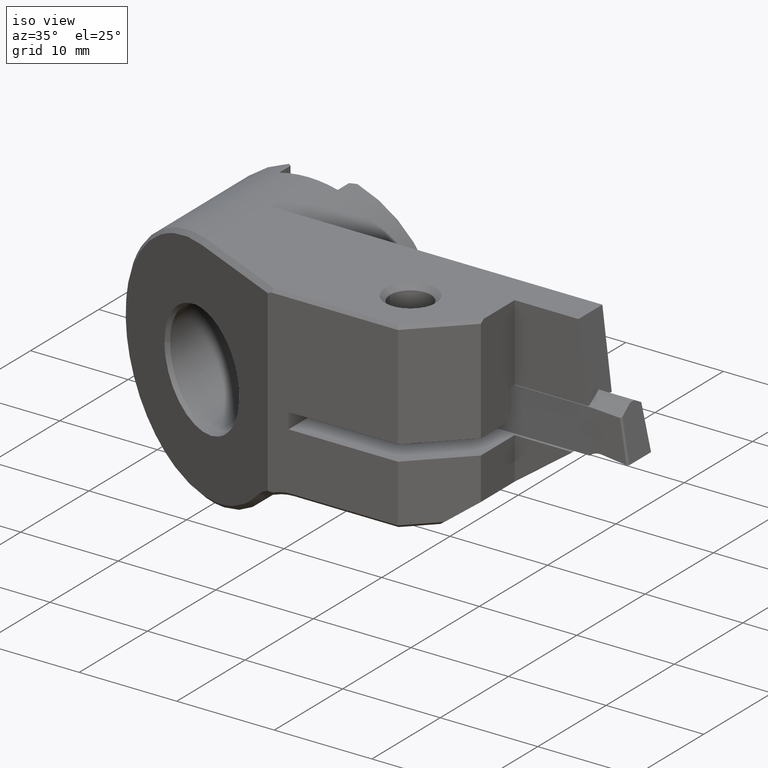
[diagram: clean part render]
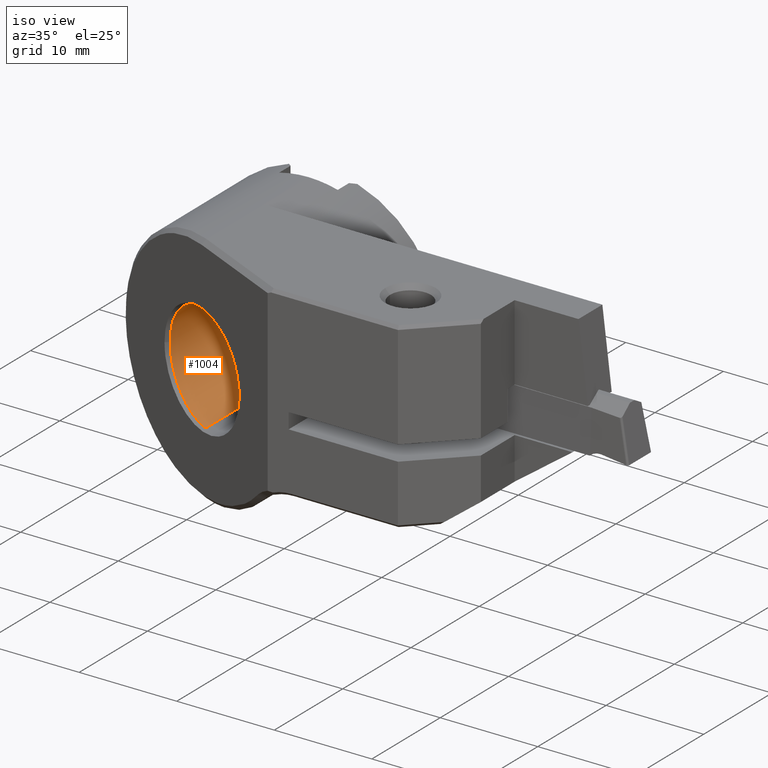
[diagram: same view with one face highlighted and labeled with its STEP entity id]
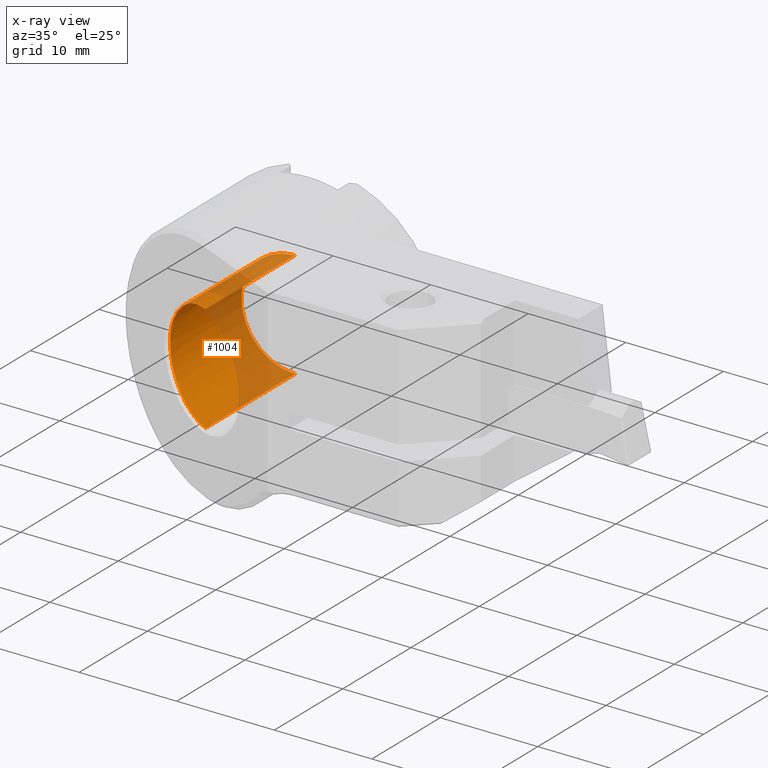
[diagram: x-ray of the same camera — body ghosted, the highlighted face saturated]
A machine part, iso view. The second image highlights one B-rep face of the part: STEP entity #1004.
The next image is the same camera in x-ray: the body ghosted, the highlighted face saturated — about 43% of this face is hidden behind the body in this view.
In plain terms, the highlighted cylindrical surface (partial cylindrical patch) has radius 5.5 mm, axis along (-0, 1, -0).
Its self-contained STEP definition (entity closure, byte-faithful):
#1004=ADVANCED_FACE('NONE',(#2567),#2568,.F.);
#1056=VERTEX_POINT('NONE',#2628);
#1256=EDGE_CURVE('NONE',#2230,#1868,#2846,.T.);
#1526=EDGE_CURVE('NONE',#1582,#1708,#3146,.T.);
#1582=VERTEX_POINT('NONE',#3206);
#1594=EDGE_CURVE('NONE',#1708,#2230,#3220,.T.);
#1708=VERTEX_POINT('NONE',#3339);
#1868=VERTEX_POINT('NONE',#3514);
#1886=EDGE_CURVE('NONE',#1056,#1868,#3535,.T.);
#2230=VERTEX_POINT('NONE',#3917);
#2326=EDGE_CURVE('NONE',#1056,#1582,#4025,.T.);
#2567=FACE_OUTER_BOUND('',#4493,.T.);
#2568=CYLINDRICAL_SURFACE('',#4494,5.5);
#2628=CARTESIAN_POINT('',(0.0,-17.1929959776406,5.5));
#2846=CIRCLE('',#5009,5.5);
#3146=B_SPLINE_CURVE_WITH_KNOTS('',3,(#5462,#5463,#5464,#5465,#5466,#5467,#5468,#5469,#5470,#5471,#5472,#5473,#5474,#5475,#5476,#5477,#5478,#5479,#5480,#5481,#5482,#5483,#5484,#5485,#5486,#5487,#5488,#5489,#5490,#5491,#5492,#5493,#5494),.UNSPECIFIED.,.F.,.F.,(4,2,2,2,1,1,1,2,2,2,2,2,1,1,1,1,2,2,2,4),(0.0,0.0625000000000113,0.093750000000017,0.10937500000002,0.117187500000021,0.121093750000022,0.123046875000022,0.124023437500022,0.125000000000023,0.156250000000027,0.171875000000029,0.17968750000003,0.183593750000031,0.185546875000031,0.186523437500031,0.187011718750031,0.187255859375031,0.187500000000031,0.218750000000015,0.25),.UNSPECIFIED.);
#3206=CARTESIAN_POINT('',(-5.5,-14.5434428039987,-1.04726789089104E-015));
#3220=LINE('',#5598,#5599);
#3339=CARTESIAN_POINT('',(-6.68798484620256E-015,-17.1929959776406,-5.5));
#3514=CARTESIAN_POINT('',(0.0,-4.1,5.5));
#3535=LINE('',#6177,#6178);
#3917=CARTESIAN_POINT('',(6.73555739531044E-016,-4.1,-5.5));
#4025=B_SPLINE_CURVE_WITH_KNOTS('',3,(#7124,#7125,#7126,#7127,#7128,#7129,#7130,#7131,#7132,#7133,#7134,#7135,#7136,#7137,#7138,#7139,#7140,#7141,#7142,#7143,#7144,#7145,#7146,#7147,#7148,#7149,#7150,#7151,#7152,#7153,#7154),.UNSPECIFIED.,.F.,.F.,(4,2,2,2,1,1,1,1,2,2,2,2,1,1,1,2,2,2,4),(0.75,0.78124999999999,0.796874999999986,0.804687499999983,0.808593749999982,0.810546874999982,0.811523437499981,0.812011718749981,0.812255859374981,0.812499999999981,0.843749999999984,0.859374999999986,0.867187499999987,0.871093749999987,0.873046874999988,0.874023437499988,0.874999999999988,0.937499999999994,1.0),.UNSPECIFIED.);
#4493=EDGE_LOOP('',(#7370,#7371,#7372,#7373,#7374));
#4494=AXIS2_PLACEMENT_3D('',#7375,#7376,#7377);
#5009=AXIS2_PLACEMENT_3D('',#7694,#7695,#7696);
#5462=CARTESIAN_POINT('',(-5.5,-14.5434428039987,-1.04726789089104E-015));
#5463=CARTESIAN_POINT('',(-5.5,-14.5434958014038,-0.680599313190137));
#5464=CARTESIAN_POINT('',(-5.37199024192015,-14.6081919798934,-1.3820442898368));
#5465=CARTESIAN_POINT('',(-4.96945245399989,-14.8022010192547,-2.3841400340633));
#5466=CARTESIAN_POINT('',(-4.80050298023184,-14.883031494313,-2.70959989943903));
#5467=CARTESIAN_POINT('',(-4.49604089303775,-15.0285183998071,-3.1732958273215));
#5468=CARTESIAN_POINT('',(-4.38607416683032,-15.0810542337896,-3.32377181117215));
#5469=CARTESIAN_POINT('',(-4.2088014777841,-15.16591828299,-3.54185919158598));
#5470=CARTESIAN_POINT('',(-4.11708727211427,-15.2098653821469,-3.64899604034688));
#5471=CARTESIAN_POINT('',(-4.00481791053764,-15.2637883783041,-3.77032508438988));
#5472=CARTESIAN_POINT('',(-3.94738276148708,-15.2914127215013,-3.83003285562333));
#5473=CARTESIAN_POINT('',(-3.92249089246139,-15.3033937639683,-3.85541252341264));
#5474=CARTESIAN_POINT('',(-3.90583501453301,-15.3114126896662,-3.8722852899002));
#5475=CARTESIAN_POINT('',(-3.89616190515332,-15.3160711365899,-3.8820126878987));
#5476=CARTESIAN_POINT('',(-3.6626998204518,-15.4285293567768,-4.11547477260022));
#5477=CARTESIAN_POINT('',(-3.40222962704263,-15.5547599596693,-4.33640577516736));
#5478=CARTESIAN_POINT('',(-2.9565518634169,-15.7698761753476,-4.64124944917141));
#5479=CARTESIAN_POINT('',(-2.79887510435076,-15.8458766324637,-4.73839377856783));
#5480=CARTESIAN_POINT('',(-2.54870812309004,-15.9663198959726,-4.8747416614551));
#5481=CARTESIAN_POINT('',(-2.46304790043753,-16.0075414134481,-4.91862717014128));
#5482=CARTESIAN_POINT('',(-2.33119387280764,-16.07098433412,-4.98175768951678));
#5483=CARTESIAN_POINT('',(-2.26442638080868,-16.1031084555707,-5.01264833018092));
#5484=CARTESIAN_POINT('',(-2.1850744656184,-16.1412912542138,-5.04742801755988));
#5485=CARTESIAN_POINT('',(-2.14503655343112,-16.160558817773,-5.06449304047735));
#5486=CARTESIAN_POINT('',(-2.12492739161609,-16.1702366406121,-5.07294309747912));
#5487=CARTESIAN_POINT('',(-2.11628988105863,-16.1743937163415,-5.07654674748955));
#5488=CARTESIAN_POINT('',(-2.11052725572543,-16.1771671973545,-5.07894520968261));
#5489=CARTESIAN_POINT('',(-2.10653795879818,-16.1790872282674,-5.08060050969644));
#5490=CARTESIAN_POINT('',(-1.87694968535023,-16.2895880980755,-5.17569905068115));
#5491=CARTESIAN_POINT('',(-1.58999916768133,-16.4288312478248,-5.27745051648229));
#5492=CARTESIAN_POINT('',(-0.888565367313591,-16.7665152989859,-5.4396721312187));
#5493=CARTESIAN_POINT('',(-0.473184578301002,-16.9650454875539,-5.5));
#5494=CARTESIAN_POINT('',(-6.68798484620256E-015,-17.1929959776406,-5.5));
#5598=CARTESIAN_POINT('',(6.73555739531044E-016,0.0,-5.5));
#5599=VECTOR('',#8082,1000.0);
#6177=CARTESIAN_POINT('',(0.0,0.0,5.5));
#6178=VECTOR('',#8366,1000.0);
#7124=CARTESIAN_POINT('',(0.0,-17.1929959776406,5.5));
#7125=CARTESIAN_POINT('',(-0.473184550394734,-16.9650454999648,5.5));
#7126=CARTESIAN_POINT('',(-0.888290357929265,-16.7666492483367,5.43971704660788));
#7127=CARTESIAN_POINT('',(-1.41437185849386,-16.5133862099659,5.31807743199431));
#7128=CARTESIAN_POINT('',(-1.57390947451253,-16.4363537536875,5.27217385147742));
#7129=CARTESIAN_POINT('',(-1.79005116924163,-16.3318879040378,5.20110265713313));
#7130=CARTESIAN_POINT('',(-1.85824598273591,-16.2989130932826,5.1770310704475));
#7131=CARTESIAN_POINT('',(-1.95488782192633,-16.2522215858416,5.14097226338242));
#7132=CARTESIAN_POINT('',(-2.00179659356622,-16.2295685092942,5.12295388773215));
#7133=CARTESIAN_POINT('',(-2.05408412442847,-16.2043521050415,5.10207576065467));
#7134=CARTESIAN_POINT('',(-2.07962224314284,-16.1920469491784,5.09168716391824));
#7135=CARTESIAN_POINT('',(-2.0922404176263,-16.1859701328126,5.08650728870881));
#7136=CARTESIAN_POINT('',(-2.09761593115466,-16.1833820175628,5.08429062393399));
#7137=CARTESIAN_POINT('',(-2.10119244085036,-16.1816602150899,5.08281359777931));
#7138=CARTESIAN_POINT('',(-2.1018746045232,-16.1813317882789,5.08253213355939));
#7139=CARTESIAN_POINT('',(-2.47385903254822,-16.0022844166001,4.92845119622341));
#7140=CARTESIAN_POINT('',(-2.80763496506254,-15.8417493075954,4.7430757304717));
#7141=CARTESIAN_POINT('',(-3.25333571416933,-15.626633091917,4.43826566368195));
#7142=CARTESIAN_POINT('',(-3.39281755064569,-15.5592087613291,4.33217312834028));
#7143=CARTESIAN_POINT('',(-3.58873886353115,-15.4644938774043,4.16871528241638));
#7144=CARTESIAN_POINT('',(-3.68337927136454,-15.4187418384312,4.08590272814899));
#7145=CARTESIAN_POINT('',(-3.78810245309191,-15.3681739148606,3.98787769165764));
#7146=CARTESIAN_POINT('',(-3.83905949445486,-15.343592316883,3.93857007050323));
#7147=CARTESIAN_POINT('',(-3.86059924700362,-15.3332078528515,3.91738107693602));
#7148=CARTESIAN_POINT('',(-3.87489287164119,-15.3263183227261,3.90324304664797));
#7149=CARTESIAN_POINT('',(-3.88069608586983,-15.323521644286,3.89747850718219));
#7150=CARTESIAN_POINT('',(-4.4261247785218,-15.0607472595588,3.35204981453022));
#7151=CARTESIAN_POINT('',(-4.83541282797594,-14.866711728829,2.71792353854952));
#7152=CARTESIAN_POINT('',(-5.37206123578692,-14.6080330096805,1.38176830811512));
#7153=CARTESIAN_POINT('',(-5.5,-14.5433898212618,0.680410942354171));
#7154=CARTESIAN_POINT('',(-5.5,-14.5434428039987,-1.04726789089104E-015));
#7370=ORIENTED_EDGE('',*,*,#2326,.T.);
#7371=ORIENTED_EDGE('',*,*,#1526,.T.);
#7372=ORIENTED_EDGE('',*,*,#1594,.T.);
#7373=ORIENTED_EDGE('',*,*,#1256,.T.);
#7374=ORIENTED_EDGE('',*,*,#1886,.F.);
#7375=CARTESIAN_POINT('',(0.0,0.0,0.0));
#7376=DIRECTION('',(-0.0,1.0,-0.0));
#7377=DIRECTION('',(0.0,0.0,1.0));
#7694=CARTESIAN_POINT('',(0.0,-4.1,0.0));
#7695=DIRECTION('',(-0.0,1.0,0.0));
#7696=DIRECTION('',(0.0,0.0,1.0));
#8082=DIRECTION('',(-0.0,1.0,0.0));
#8366=DIRECTION('',(-0.0,1.0,0.0));